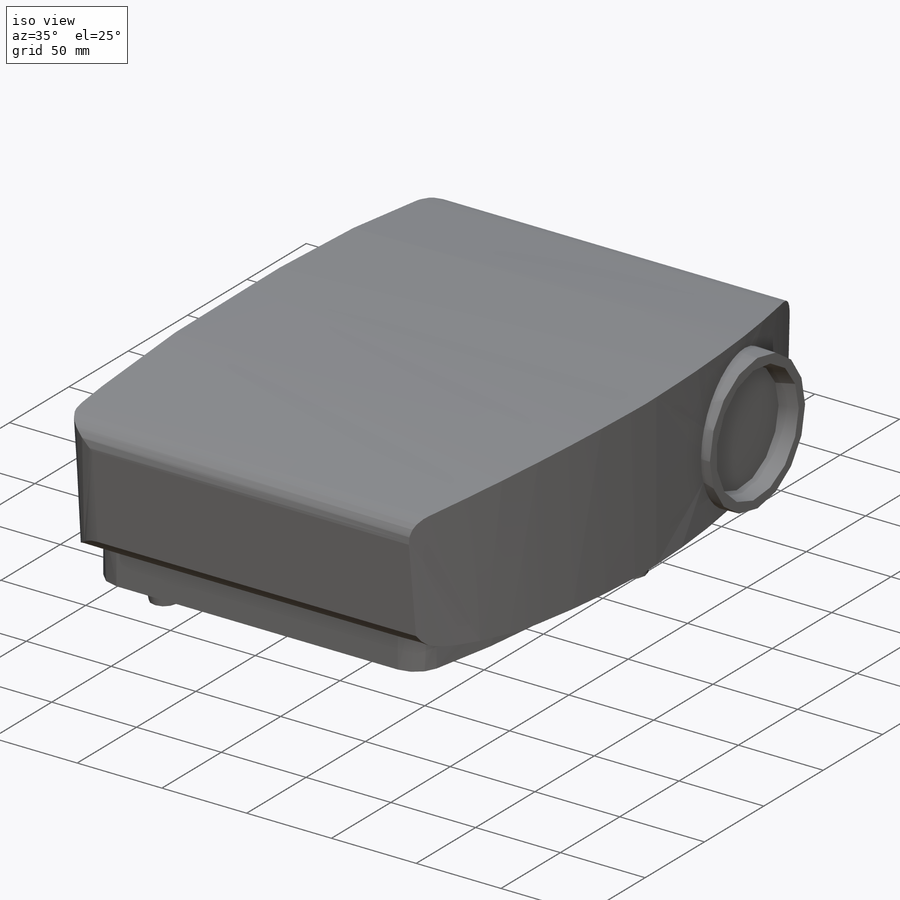
[diagram: iso view]
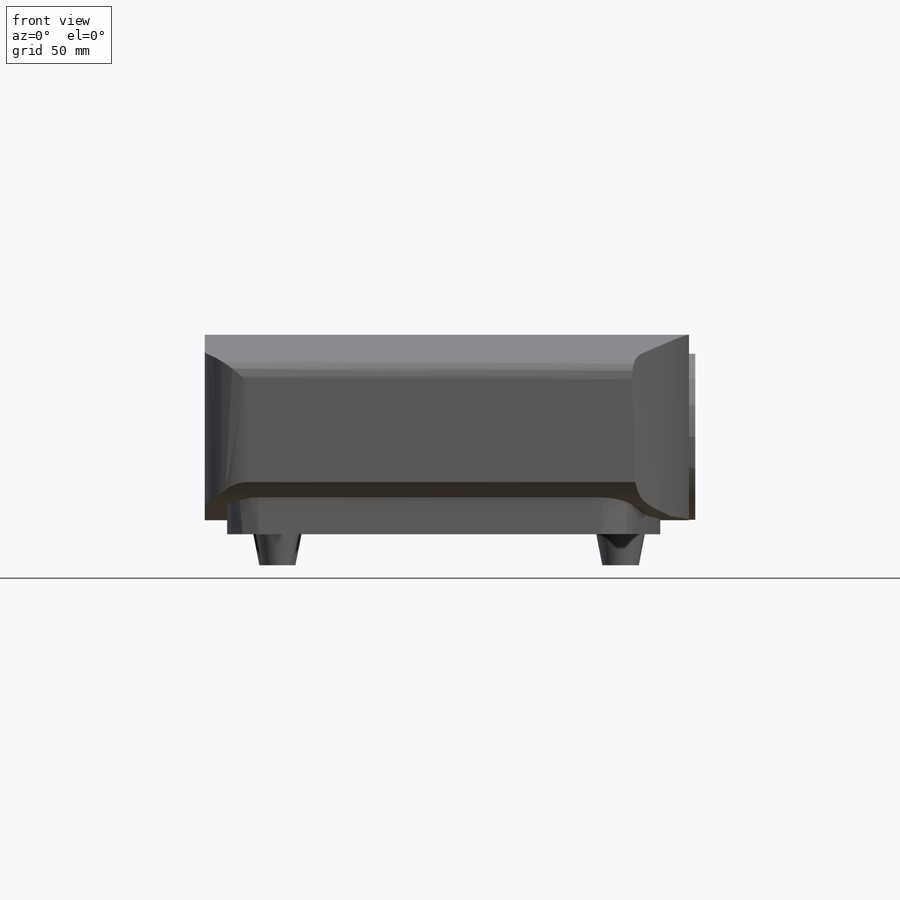
[diagram: front view]
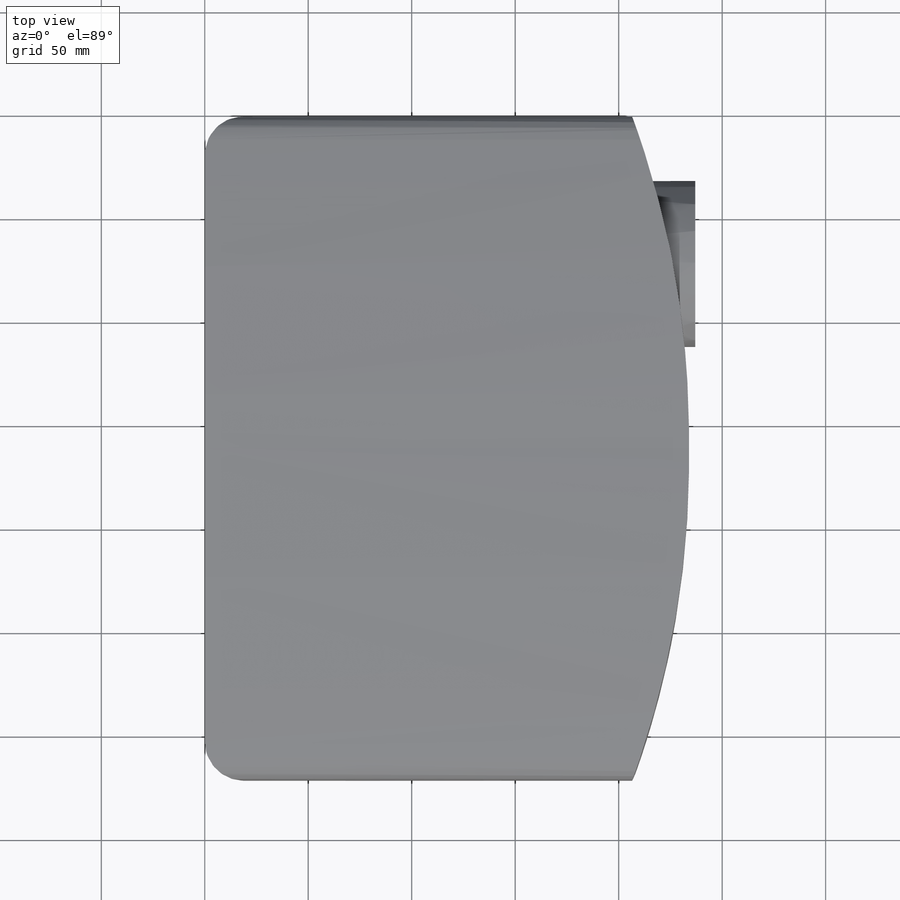
[diagram: top view]
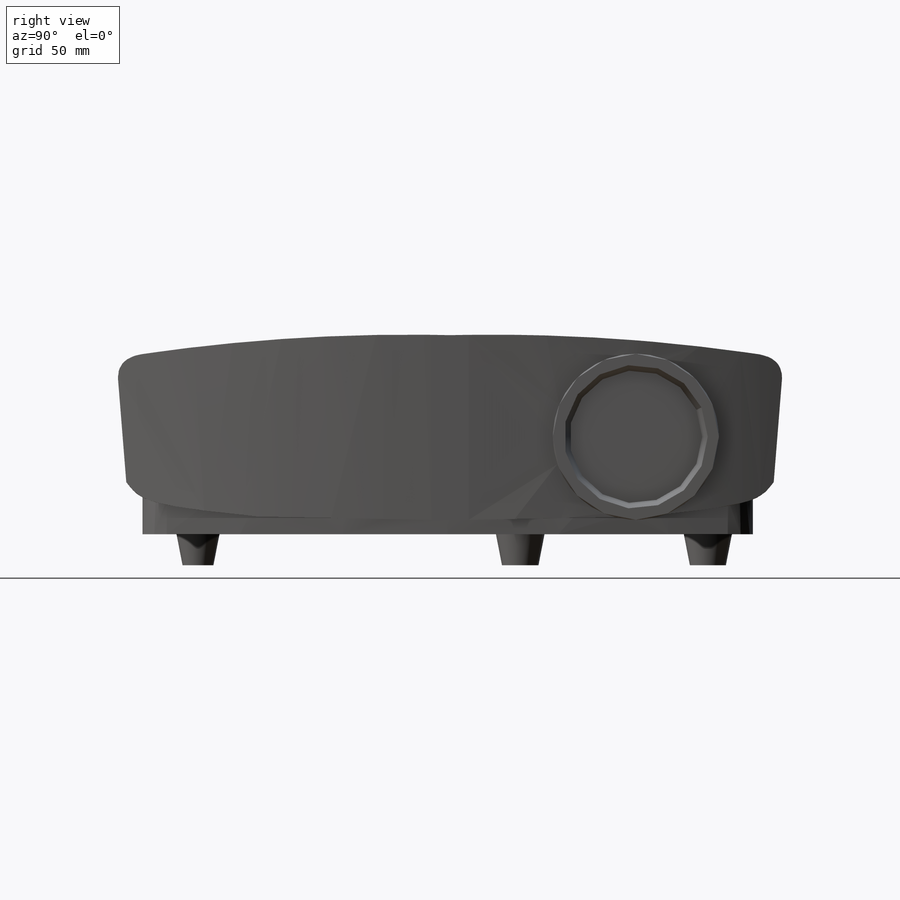
[diagram: right view]
SOLIDWORKS PART (.sldprt)
format: sldprt  version: not decoded by parser v0  size: 361,472 bytes
history: native  units: mm
features: extrude x4, plane x3, sketch x2, cut_extrude x2, material x1, fillet x1 + 7 further entries (+9 scaffold rows collapsed)
feature tree (29):
  scaffold x9  (default folders/planes/origin — collapsed)
  material  "Материал <не указан>"
  plane  "Спереди"
  plane  "Сверху"
  plane  "Справа"
  sketch  "Эскиз7"  dims[c1.D1=~39.42155mm c1.D2=~130.74814mm c2.D1=97.0mm]
  "Эскиз9"
  sketch  "Картинка эскиза4"
  "Эскиз8"
  extrude  "Бобышка-Вытянуть2"  Depth=234mm
  "Эскиз10"
  cut_extrude  "Вырез-Вытянуть1"  [1 undecoded]
  fillet  "Скругление1"  Radius=20mm
  "Эскиз11"
  extrude  "Бобышка-Вытянуть3"  Depth=20mm
  "Эскиз12"
  extrude  "Бобышка-Вытянуть4"  Depth=237mm
  "Эскиз13"
  cut_extrude  "Вырез-Вытянуть2"  Depth=10mm
  "Эскиз14"
  extrude  "Бобышка-Вытянуть5"  Depth=15mm
decode coverage: 7 of 9 modeling features carry decoded parameters; 7 rows unclassified (native names shown)
note: ~ marks probable driven/reference dimensions
note: 1 parameter value undecoded
note: suppression state not decoded; provenance and decode notes live in map.json
